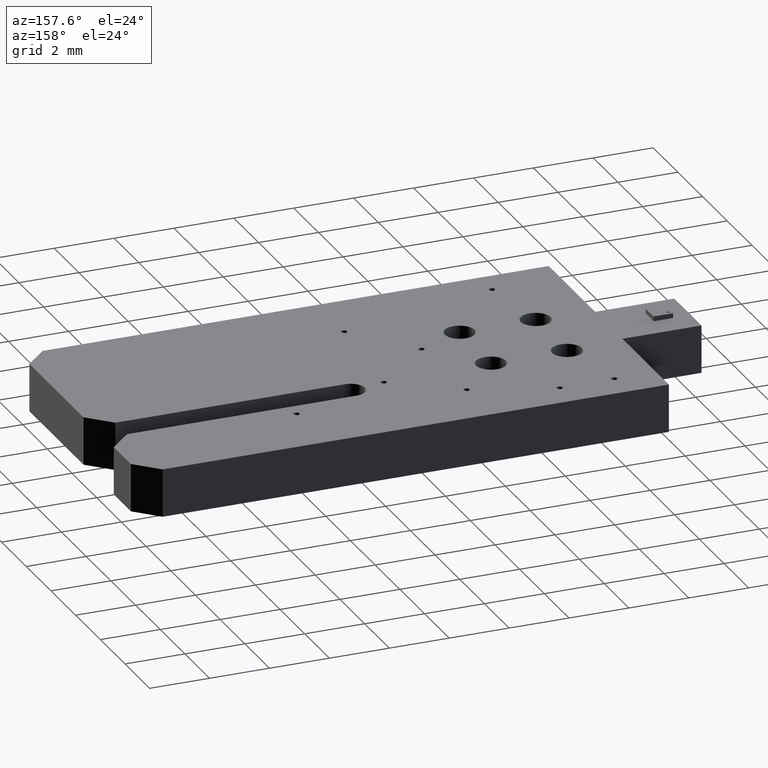
[diagram: clean part render]
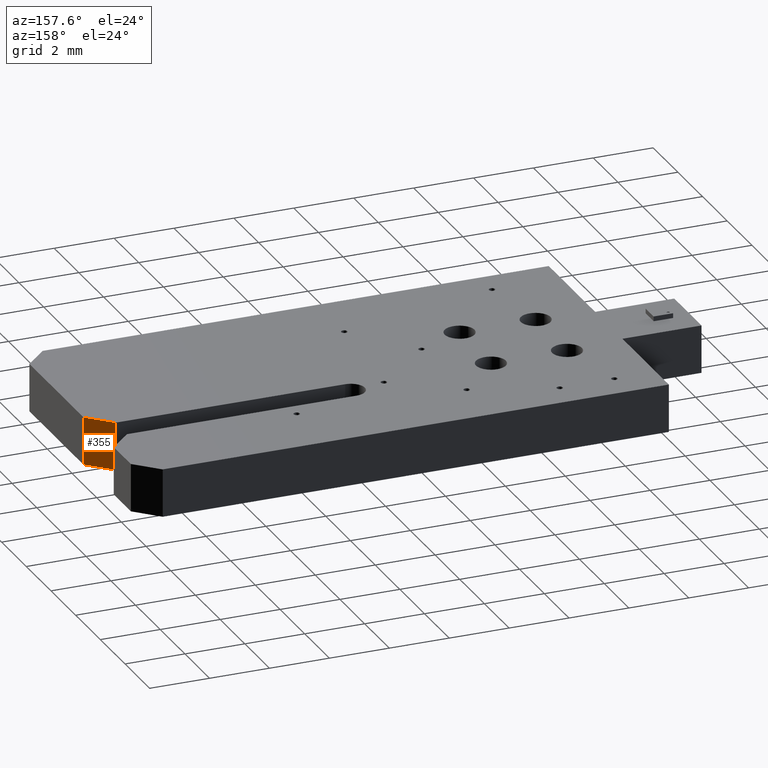
[diagram: same view with one face highlighted and labeled with its STEP entity id]
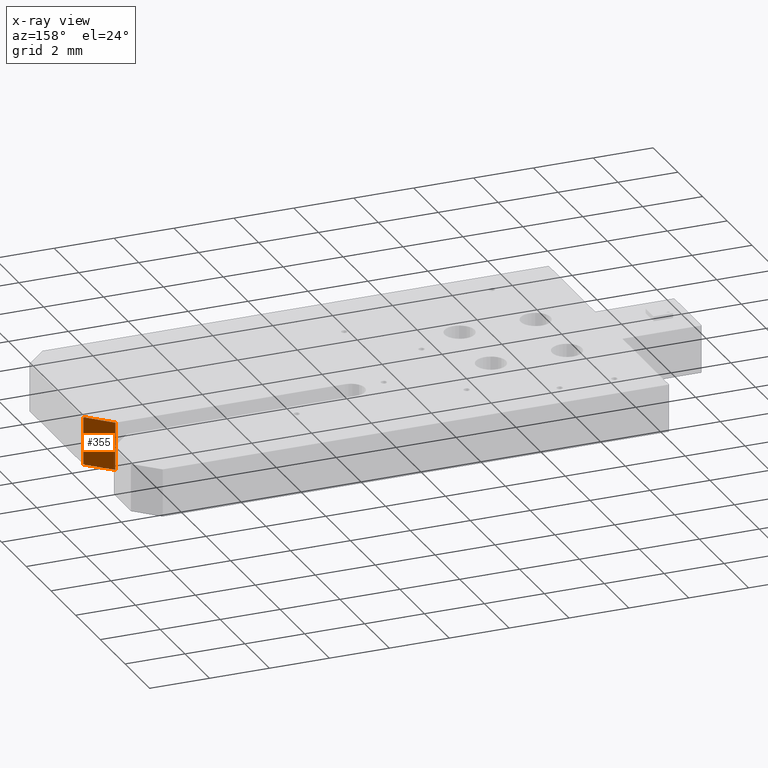
[diagram: x-ray of the same camera — body ghosted, the highlighted face saturated]
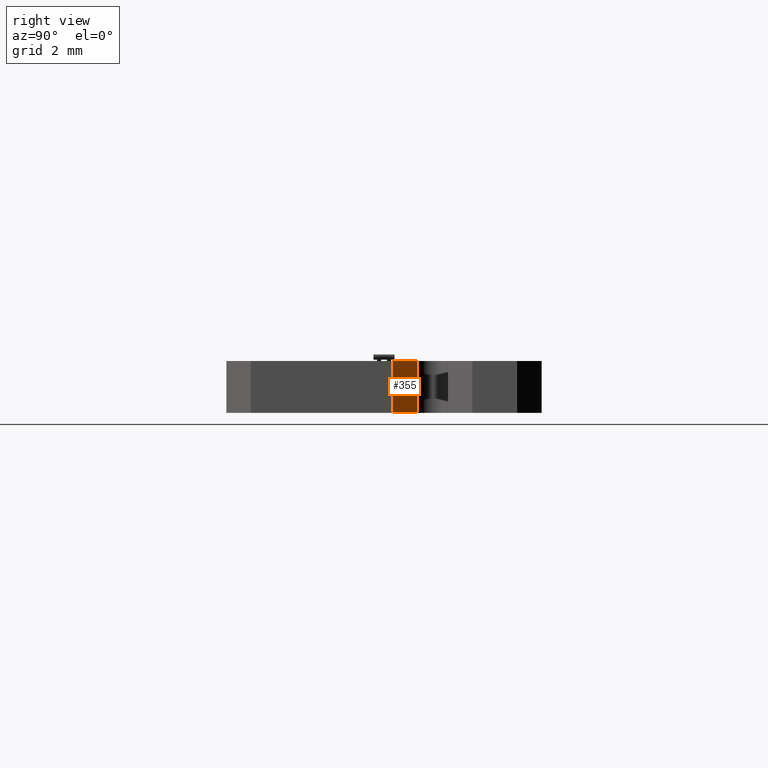
[diagram: same view with one face highlighted and labeled with its STEP entity id]
A machine part, auxiliary view. The second image highlights one B-rep face of the part: STEP entity #355.
The next image is the same camera in x-ray: the body ghosted, the highlighted face saturated — about 0% of this face is hidden behind the body in this view.
A second angle (right view) of the same face is appended — the face is thin or edge-on in the first view.
In plain terms, the highlighted planar face has unit normal (0.7071, 0.7071, 0).
Its self-contained STEP definition (entity closure, byte-faithful):
#330 = VERTEX_POINT('',#331);
#331 = CARTESIAN_POINT('',(20.975181438121,1.031242062484,1.600025400051
    ));
#337 = EDGE_CURVE('',#338,#330,#340,.T.);
#338 = VERTEX_POINT('',#339);
#339 = CARTESIAN_POINT('',(20.975181438121,1.031242062484,0.));
#340 = LINE('',#341,#342);
#341 = CARTESIAN_POINT('',(20.975181438121,1.031242062484,0.));
#342 = VECTOR('',#343,1.);
#343 = DIRECTION('',(0.,0.,1.));
#355 = ADVANCED_FACE('',(#356),#381,.T.);
#356 = FACE_BOUND('',#357,.T.);
#357 = EDGE_LOOP('',(#358,#359,#367,#375));
#358 = ORIENTED_EDGE('',*,*,#337,.T.);
#359 = ORIENTED_EDGE('',*,*,#360,.T.);
#360 = EDGE_CURVE('',#330,#361,#363,.T.);
#361 = VERTEX_POINT('',#362);
#362 = CARTESIAN_POINT('',(21.729743459487,0.276680041118,1.600025400051
    ));
#363 = LINE('',#364,#365);
#364 = CARTESIAN_POINT('',(20.975181438121,1.031242062484,1.600025400051
    ));
#365 = VECTOR('',#366,1.);
#366 = DIRECTION('',(0.707106781187,-0.707106781187,0.));
#367 = ORIENTED_EDGE('',*,*,#368,.F.);
#368 = EDGE_CURVE('',#369,#361,#371,.T.);
#369 = VERTEX_POINT('',#370);
#370 = CARTESIAN_POINT('',(21.729743459487,0.276680041118,0.));
#371 = LINE('',#372,#373);
#372 = CARTESIAN_POINT('',(21.729743459487,0.276680041118,0.));
#373 = VECTOR('',#374,1.);
#374 = DIRECTION('',(0.,0.,1.));
#375 = ORIENTED_EDGE('',*,*,#376,.F.);
#376 = EDGE_CURVE('',#338,#369,#377,.T.);
#377 = LINE('',#378,#379);
#378 = CARTESIAN_POINT('',(20.975181438121,1.031242062484,0.));
#379 = VECTOR('',#380,1.);
#380 = DIRECTION('',(0.707106781187,-0.707106781187,0.));
#381 = PLANE('',#382);
#382 = AXIS2_PLACEMENT_3D('',#383,#384,#385);
#383 = CARTESIAN_POINT('',(20.975181438121,1.031242062484,0.));
#384 = DIRECTION('',(0.707106781187,0.707106781187,-0.));
#385 = DIRECTION('',(0.707106781187,-0.707106781187,0.));